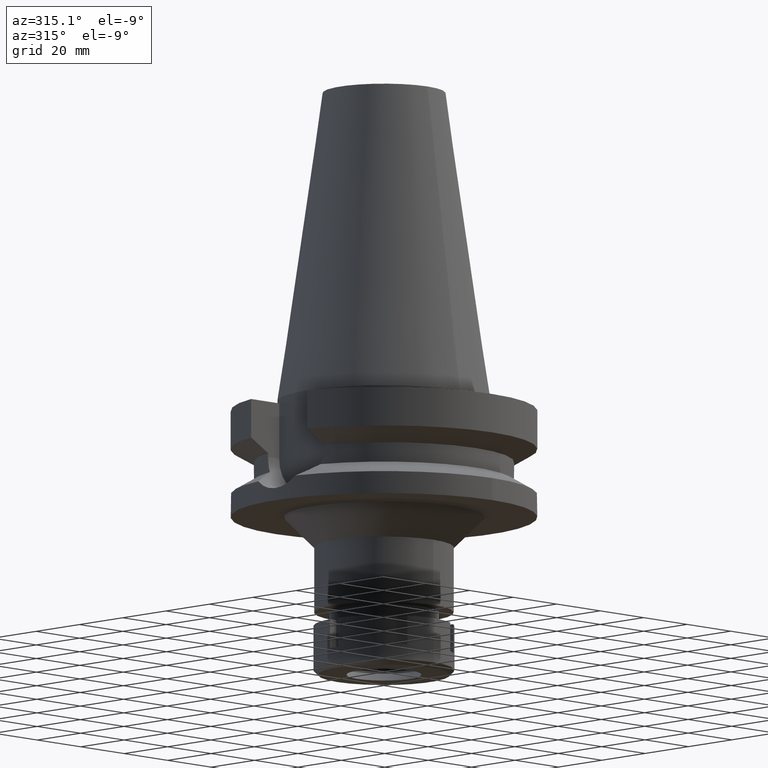
[diagram: clean part render]
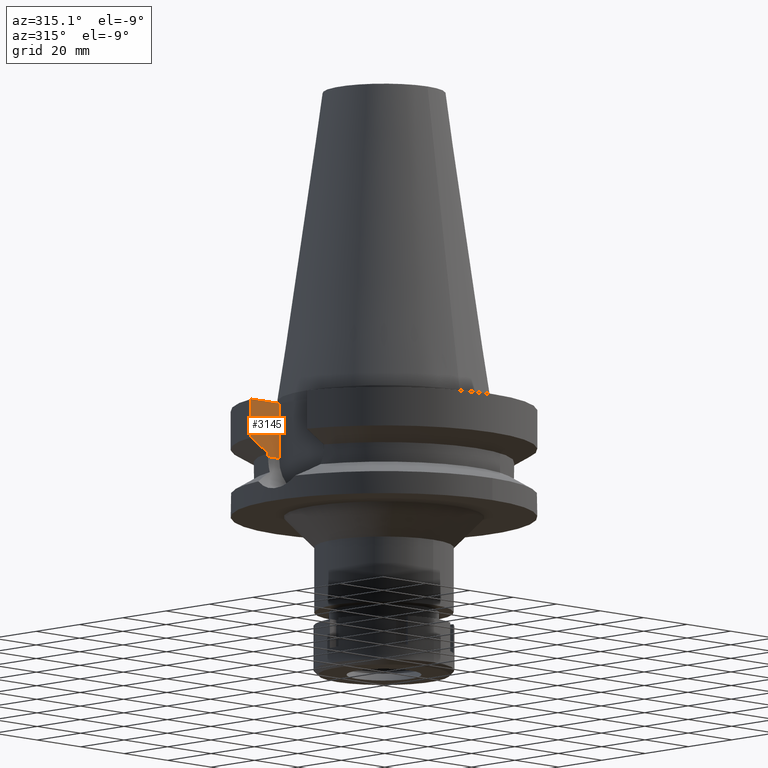
[diagram: same view with one face highlighted and labeled with its STEP entity id]
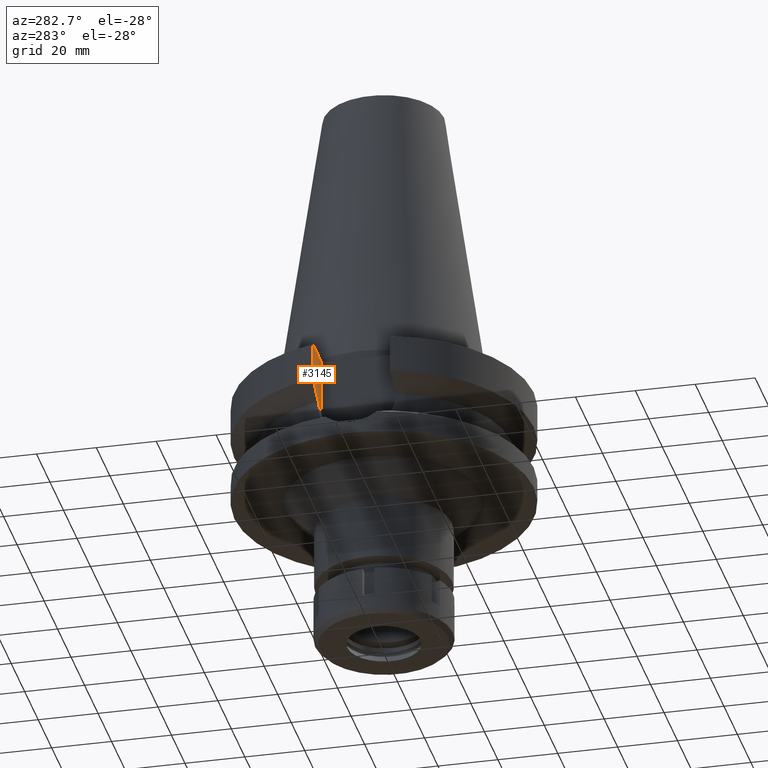
[diagram: same view with one face highlighted and labeled with its STEP entity id]
A machine part, auxiliary view. The second image highlights one B-rep face of the part: STEP entity #3145.
A second angle (auxiliary view) of the same face is appended — the face is thin or edge-on in the first view.
In plain terms, the highlighted planar face has unit normal (0, 1, 0).
Its self-contained STEP definition (entity closure, byte-faithful):
#127 = EDGE_LOOP ( 'NONE', ( #180, #1016, #1405, #3022, #1651, #821 ) ) ;
#180 = ORIENTED_EDGE ( 'NONE', *, *, #711, .T. ) ;
#192 = EDGE_CURVE ( 'NONE', #1963, #1833, #1815, .T. ) ;
#233 = CARTESIAN_POINT ( 'NONE',  ( -42.90863120328447167, 12.84999293407135568, -18.67324433406576389 ) ) ;
#377 = LINE ( 'NONE', #2575, #1953 ) ;
#532 = VECTOR ( 'NONE', #1733, 1000.000000000000000 ) ;
#609 = DIRECTION ( 'NONE',  ( 0.0000000000000000000, 0.0000000000000000000, 1.000000000000000000 ) ) ;
#612 = LINE ( 'NONE', #1416, #532 ) ;
#615 = DIRECTION ( 'NONE',  ( 1.000000000000000000, 3.301887120261000215E-14, -2.711023109266999928E-14 ) ) ;
#698 = CARTESIAN_POINT ( 'NONE',  ( -40.51083188481999997, 12.84999999999999964, -19.99281925464999787 ) ) ;
#711 = EDGE_CURVE ( 'NONE', #863, #3542, #841, .T. ) ;
#801 = LINE ( 'NONE', #1646, #2065 ) ;
#821 = ORIENTED_EDGE ( 'NONE', *, *, #1254, .T. ) ;
#841 = LINE ( 'NONE', #910, #949 ) ;
#863 = VERTEX_POINT ( 'NONE', #1467 ) ;
#910 = CARTESIAN_POINT ( 'NONE',  ( -40.51083188481999997, 12.84999999999999964, -21.14999999999999858 ) ) ;
#949 = VECTOR ( 'NONE', #615, 1000.000000000000000 ) ;
#1016 = ORIENTED_EDGE ( 'NONE', *, *, #1818, .T. ) ;
#1093 = FACE_OUTER_BOUND ( 'NONE', #127, .T. ) ;
#1135 = CARTESIAN_POINT ( 'NONE',  ( -48.32056913534000131, 12.85000383024000037, -15.66265792477999952 ) ) ;
#1153 = PLANE ( 'NONE',  #3318 ) ;
#1225 = CARTESIAN_POINT ( 'NONE',  ( -48.32056913534000131, 12.85000383024000037, -15.66265792477999952 ) ) ;
#1254 = EDGE_CURVE ( 'NONE', #3400, #863, #612, .T. ) ;
#1405 = ORIENTED_EDGE ( 'NONE', *, *, #1704, .T. ) ;
#1406 = CARTESIAN_POINT ( 'NONE',  ( -40.51083188481999997, 12.84999999999999964, -19.99281925464999787 ) ) ;
#1416 = CARTESIAN_POINT ( 'NONE',  ( -40.51083300442999757, 12.84999647032999981, -19.99284634242000180 ) ) ;
#1467 = CARTESIAN_POINT ( 'NONE',  ( -40.51083188481999997, 12.84999999999999964, -21.14999999999999858 ) ) ;
#1478 = VECTOR ( 'NONE', #2934, 1000.000000000000000 ) ;
#1571 = CARTESIAN_POINT ( 'NONE',  ( -48.32057015392000210, 12.84999999999999964, -3.000000000000000000 ) ) ;
#1646 = CARTESIAN_POINT ( 'NONE',  ( -35.39999999999999858, 12.84999999999999964, -3.000000000000000000 ) ) ;
#1651 = ORIENTED_EDGE ( 'NONE', *, *, #2260, .F. ) ;
#1704 = EDGE_CURVE ( 'NONE', #1788, #1963, #801, .T. ) ;
#1731 = DIRECTION ( 'NONE',  ( -0.0000000000000000000, 1.000000000000000000, 0.0000000000000000000 ) ) ;
#1733 = DIRECTION ( 'NONE',  ( 9.675522355831797616E-07, 3.050301891739939204E-06, -0.9999999999948797624 ) ) ;
#1788 = VERTEX_POINT ( 'NONE', #1891 ) ;
#1815 = LINE ( 'NONE', #1571, #1478 ) ;
#1818 = EDGE_CURVE ( 'NONE', #3542, #1788, #377, .T. ) ;
#1833 = VERTEX_POINT ( 'NONE', #1225 ) ;
#1844 = CARTESIAN_POINT ( 'NONE',  ( -35.39999999999999858, 12.84999999999999964, -21.14999999999999858 ) ) ;
#1891 = CARTESIAN_POINT ( 'NONE',  ( -35.39999999999999858, 12.84999999999999964, -3.000000000000000000 ) ) ;
#1946 = DIRECTION ( 'NONE',  ( -1.000000000000000000, 0.0000000000000000000, 0.0000000000000000000 ) ) ;
#1953 = VECTOR ( 'NONE', #609, 1000.000000000000000 ) ;
#1963 = VERTEX_POINT ( 'NONE', #3531 ) ;
#2065 = VECTOR ( 'NONE', #1946, 1000.000000000000000 ) ;
#2260 = EDGE_CURVE ( 'NONE', #3400, #1833, #3509, .T. ) ;
#2575 = CARTESIAN_POINT ( 'NONE',  ( -35.39999999999999858, 12.84999999999999964, -21.14999999999999858 ) ) ;
#2934 = DIRECTION ( 'NONE',  ( 8.044008109780610066E-08, 3.024831175739850181E-07, -0.9999999999999510392 ) ) ;
#3022 = ORIENTED_EDGE ( 'NONE', *, *, #192, .T. ) ;
#3145 = ADVANCED_FACE ( 'NONE', ( #1093 ), #1153, .F. ) ;
#3318 = AXIS2_PLACEMENT_3D ( 'NONE', #3343, #1731, #3611 ) ;
#3343 = CARTESIAN_POINT ( 'NONE',  ( -35.39999999999999858, 12.84999999999999964, -3.000000000000000000 ) ) ;
#3371 = CARTESIAN_POINT ( 'NONE',  ( -45.51180184929884831, 12.85000765586267590, -17.22986548581681276 ) ) ;
#3400 = VERTEX_POINT ( 'NONE', #698 ) ;
#3509 = B_SPLINE_CURVE_WITH_KNOTS ( 'NONE', 3,
 ( #1406, #233, #3371, #1135 ),
 .UNSPECIFIED., .F., .F.,
 ( 4, 4 ),
 ( 0.0000000000000000000, 1.000000000000000000 ),
 .UNSPECIFIED. ) ;
#3531 = CARTESIAN_POINT ( 'NONE',  ( -48.32057015392000210, 12.84999999999999964, -3.000000000000000000 ) ) ;
#3542 = VERTEX_POINT ( 'NONE', #1844 ) ;
#3611 = DIRECTION ( 'NONE',  ( 1.000000000000000000, 0.0000000000000000000, 0.0000000000000000000 ) ) ;